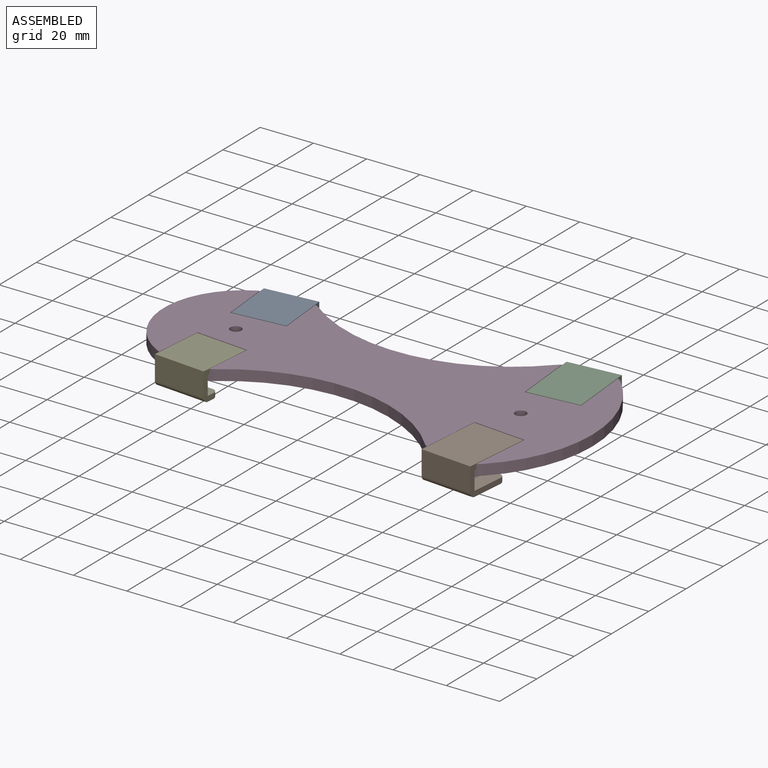
[diagram: assembled view]
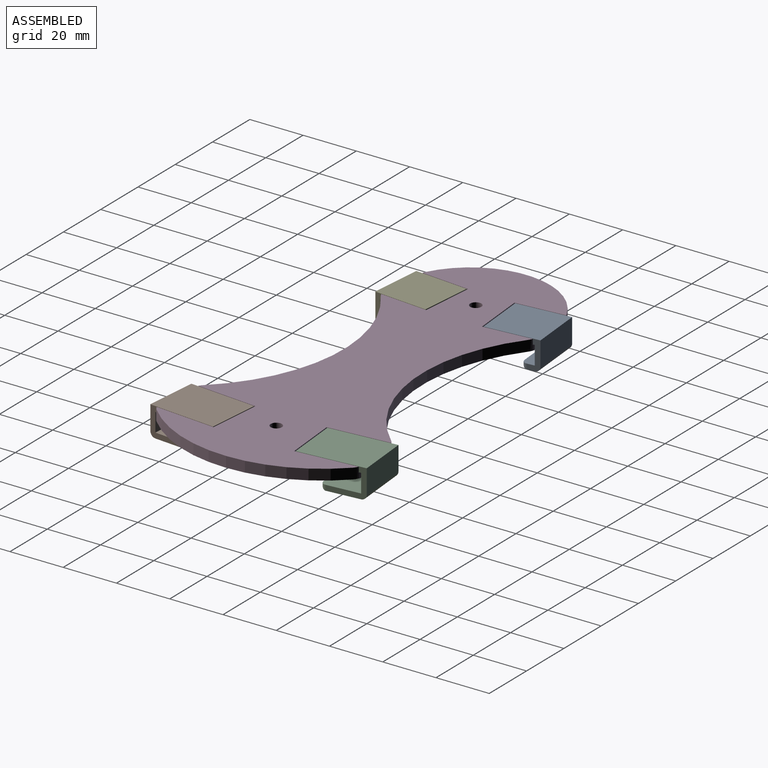
[diagram: assembled view, second angle]
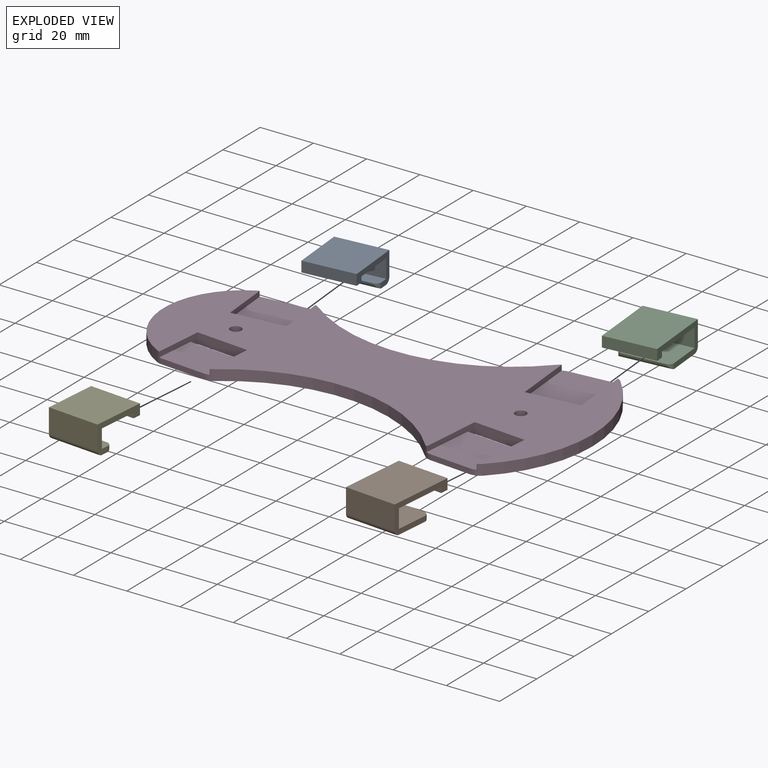
[diagram: exploded view]
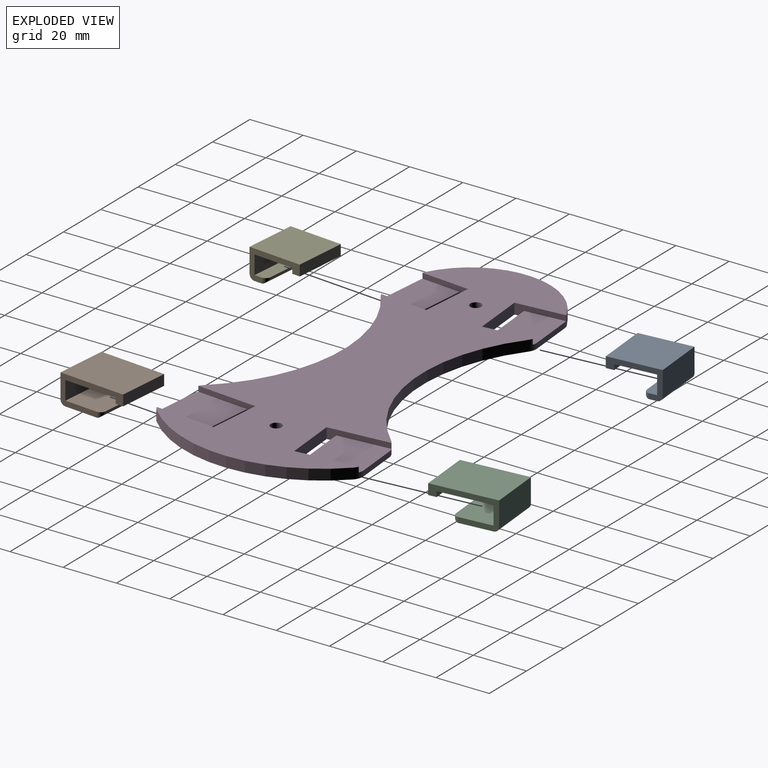
[diagram: exploded view, second angle]
ASSEMBLY  parts=5 mates=4
PART A: 15 faces, bbox 20.2x19.6x11 mm
  f0: plane 19.6x4mm, normal (-1,0,0), area 78.4mm2, adj f1,f8,f9,f10
  f1: plane 19.6x3mm, normal (0,0,-1), area 58.8mm2, adj f0,f2,f9,f10
  f2: plane 19.6x2mm, normal (1,0,0), area 39.2mm2, adj f1,f3,f9,f10
  f3: plane 19.6x15.2mm, normal (0,0,-1), area 297.9mm2, adj f2,f4,f9,f10
  f4: plane 19.6x7mm, normal (-1,0,0), area 137.2mm2, adj f3,f5,f9,f10
  f5: plane 19.6x4.8mm, normal (0,0,1), area 92.4mm2, adj f4,f9,f10,f11,f12,f13
  f6: plane 19.6x2.8mm, normal (0,0,-1), area 54.9mm2, adj f9,f10,f13,f14
  f7: plane 19.6x9mm, normal (1,0,0), area 176.4mm2, adj f8,f9,f10,f14
  f8: plane 20.2x19.6mm, normal (0,0,1), area 395.9mm2, adj f0,f7,f9,f10
  f9: plane 20.2x11mm, normal (0,-1,0), area 69.1mm2, adj f0,f1,f2,f3,f4,f5,f6,f7
  f10: plane 20.2x11mm, normal (0,1,0), area 69.1mm2, adj f0,f1,f2,f3,f4,f5,f6,f7
  f11: cylinder r=2mm len=2mm, axis (0,0,1), area 4mm2, adj f5,f9,f13
  f12: cylinder r=2mm len=2mm, axis (0,0,-1), area 4mm2, adj f5,f10,f13
  f13: cylinder r=2mm len=19.6mm, axis (0,1,0), area 57mm2, adj f5,f6,f11,f12
  f14: cylinder r=2mm len=19.6mm, axis (0,1,0), area 61.6mm2, adj f6,f7,f9,f10
PART B: 15 faces, bbox 25.2x19.6x11 mm
  f0: plane 19.6x4mm, normal (-1,0,0), area 78.4mm2, adj f1,f8,f9,f10
  f1: plane 19.6x3mm, normal (0,0,-1), area 58.8mm2, adj f0,f2,f9,f10
  f2: plane 19.6x2mm, normal (1,0,0), area 39.2mm2, adj f1,f3,f9,f10
  f3: plane 20.2x19.6mm, normal (0,0,-1), area 395.9mm2, adj f2,f4,f9,f10
  f4: plane 19.6x7mm, normal (-1,0,0), area 137.2mm2, adj f3,f5,f9,f10
  f5: plane 19.6x14.5mm, normal (0,0,1), area 282.5mm2, adj f4,f9,f10,f11,f12,f13
  f6: plane 19.6x12.5mm, normal (0,0,-1), area 245mm2, adj f9,f10,f13,f14
  f7: plane 19.6x9mm, normal (1,0,0), area 176.4mm2, adj f8,f9,f10,f14
  f8: plane 25.2x19.6mm, normal (0,0,1), area 493.9mm2, adj f0,f7,f9,f10
  f9: plane 25.2x11mm, normal (0,-1,0), area 98.5mm2, adj f0,f1,f2,f3,f4,f5,f6,f7
  f10: plane 25.2x11mm, normal (0,1,0), area 98.5mm2, adj f0,f1,f2,f3,f4,f5,f6,f7
  f11: cylinder r=2mm len=2mm, axis (0,0,1), area 4mm2, adj f5,f9,f13
  f12: cylinder r=2mm len=2mm, axis (0,0,-1), area 4mm2, adj f5,f10,f13
  f13: cylinder r=2mm len=19.6mm, axis (0,1,0), area 57mm2, adj f5,f6,f11,f12
  f14: cylinder r=2mm len=19.6mm, axis (0,1,0), area 61.6mm2, adj f6,f7,f9,f10
PART C: same geometry as B
PART D: 42 faces, bbox 161x76.6x4 mm
  f0: plane 161x75.85mm, normal (0,0,-1), area 6051.2mm2, adj f1,f3,f4,f6,f7,f9,f10,f12
  f1: plane 18.24x4mm, normal (1,0.09,0), area 43.4mm2, adj f0,f2,f24,f25,f29,f35
  f2: plane 19.92x2mm, normal (0.09,-1,0), area 40mm2, adj f1,f3,f25,f29
  f3: plane 17.92x4mm, normal (-1,-0.09,0), area 42.8mm2, adj f0,f2,f24,f25,f29,f34
  f4: plane 22.9x4mm, normal (1,0.09,0), area 52.8mm2, adj f0,f5,f20,f25,f27,f41
  f5: plane 19.92x2mm, normal (0.09,-1,0), area 40mm2, adj f4,f6,f25,f27
  f6: plane 22.77x4mm, normal (-1,-0.09,0), area 52.5mm2, adj f0,f5,f20,f25,f27,f40
  f7: plane 22.77x4mm, normal (-1,0.09,0), area 52.5mm2, adj f0,f8,f21,f25,f28,f39
  f8: plane 19.92x2mm, normal (0.09,1,0), area 40mm2, adj f7,f9,f25,f28
  f9: plane 22.9x4mm, normal (1,-0.09,0), area 52.8mm2, adj f0,f8,f21,f25,f28,f38
  f10: plane 17.92x4mm, normal (-1,0.09,0), area 42.8mm2, adj f0,f11,f22,f25,f26,f37
  f11: plane 19.92x2mm, normal (0.09,1,0), area 40mm2, adj f10,f12,f25,f26
  f12: plane 18.24x4mm, normal (1,-0.09,0), area 43.4mm2, adj f0,f11,f22,f25,f26,f36
  f13: cylinder r=62.74mm len=84.23mm, axis (0,0,-1), area 371.2mm2, adj f0,f25,f34,f41
  f14: plane 17.01x2mm, normal (-0.09,1,0), area 34.2mm2, adj f25,f29,f34,f35
  f15: cylinder r=29.94mm len=53.16mm, axis (0,0,-1), area 261.7mm2, adj f0,f25,f35,f36
  f16: plane 17.01x2mm, normal (-0.09,-1,0), area 34.2mm2, adj f25,f26,f36,f37
  f17: cylinder r=62.74mm len=84.23mm, axis (0,0,-1), area 371.2mm2, adj f0,f25,f37,f38
  f18: plane 15.7x2mm, normal (-0.09,-1,0), area 31.5mm2, adj f25,f28,f38,f39
  f19: cylinder r=51.84mm len=73.66mm, axis (0,0,-1), area 327.7mm2, adj f0,f25,f39,f40
  f20: plane 19.92x4mm, normal (-0.09,1,0), area 80mm2, adj f0,f4,f6,f25
  f21: plane 19.92x4mm, normal (-0.09,-1,0), area 80mm2, adj f0,f7,f9,f25
  f22: plane 19.92x4mm, normal (-0.09,-1,0), area 80mm2, adj f0,f10,f12,f25
  f23: plane 15.7x2mm, normal (-0.09,1,0), area 31.5mm2, adj f25,f27,f40,f41
  f24: plane 19.92x4mm, normal (-0.09,1,0), area 80mm2, adj f0,f1,f3,f25
  f25: plane 161x76.56mm, normal (0,0,1), area 7371.4mm2, adj f1,f2,f3,f4,f5,f6,f7,f8
  f26: plane 21.26x16.58mm, normal (0,0,-1), area 299.7mm2, adj f10,f11,f12,f16,f36,f37
  f27: plane 21.68x21.53mm, normal (0,0,-1), area 399.3mm2, adj f4,f5,f6,f23,f40,f41
  f28: plane 21.68x21.53mm, normal (0,0,-1), area 399.3mm2, adj f7,f8,f9,f18,f38,f39
  f29: plane 21.26x16.58mm, normal (0,0,-1), area 299.7mm2, adj f1,f2,f3,f14,f34,f35
  f30: cylinder r=2.1mm len=4.2mm, axis (0,0,1), area 26.4mm2, adj f0,f31
  f31: cone r=2.1mm half-angle=45deg, axis (0,0,1), area 55.1mm2, adj f25,f30
  f32: cylinder r=2.1mm len=4.2mm, axis (0,0,1), area 26.4mm2, adj f0,f33
  f33: cone r=2.1mm half-angle=45deg, axis (0,0,1), area 55.1mm2, adj f25,f32
  f34: cylinder r=5mm len=4mm, axis (0,0,-1), area 10.7mm2, adj f0,f3,f13,f14,f25,f29
  f35: cylinder r=5mm len=4mm, axis (0,0,-1), area 5.9mm2, adj f0,f1,f14,f15,f25,f29
  f36: cylinder r=5mm len=4mm, axis (0,0,-1), area 5.9mm2, adj f0,f12,f15,f16,f25,f26
  f37: cylinder r=5mm len=4mm, axis (0,0,-1), area 10.7mm2, adj f0,f10,f16,f17,f25,f26
  f38: cylinder r=5mm len=4mm, axis (0,0,-1), area 10.7mm2, adj f0,f9,f17,f18,f25,f28
  f39: cylinder r=5mm len=4mm, axis (0,0,-1), area 12.7mm2, adj f0,f7,f18,f19,f25,f28
  f40: cylinder r=5mm len=4mm, axis (0,0,-1), area 12.7mm2, adj f0,f6,f19,f23,f25,f27
  f41: cylinder r=5mm len=4mm, axis (0,0,-1), area 10.7mm2, adj f0,f4,f13,f23,f25,f27
PART E: same geometry as A
PLACE A rot(axis=(0,0,1),95.1deg) t=(-64.3,31.45,4.64)mm
PLACE B rot(axis=(0,0,-1),95.1deg) t=(42.85,-15.83,4.64)mm
PLACE C rot(axis=(0,0,1),95.1deg) t=(42.85,38.59,4.64)mm
PLACE D rot(axis=(-1,0,0),180deg) t=(-11.55,11.38,10.14)mm
PLACE E rot(axis=(0,0,-1),95.1deg) t=(-64.3,-8.69,4.64)mm
MATE fastened A.f2 <-> D.f11  axis (-0.09,1,0) through (-63.66,24.38,7.14)mm
MATE fastened E.f2 <-> D.f2  axis (-0.09,-1,0) through (-63.66,-1.62,7.14)mm
MATE fastened C.f2 <-> D.f8  axis (-0.09,1,0) through (43.71,29.03,7.14)mm
MATE fastened B.f2 <-> D.f5  axis (-0.09,-1,0) through (43.71,-6.26,7.14)mm
